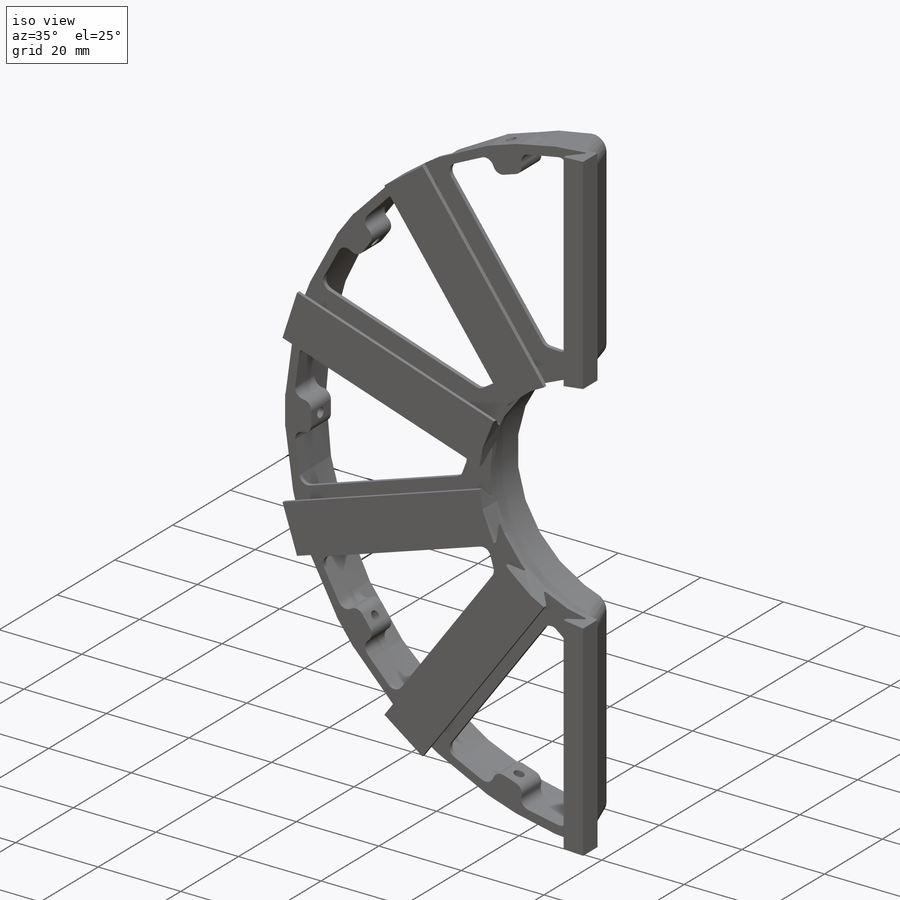
[diagram: iso view]
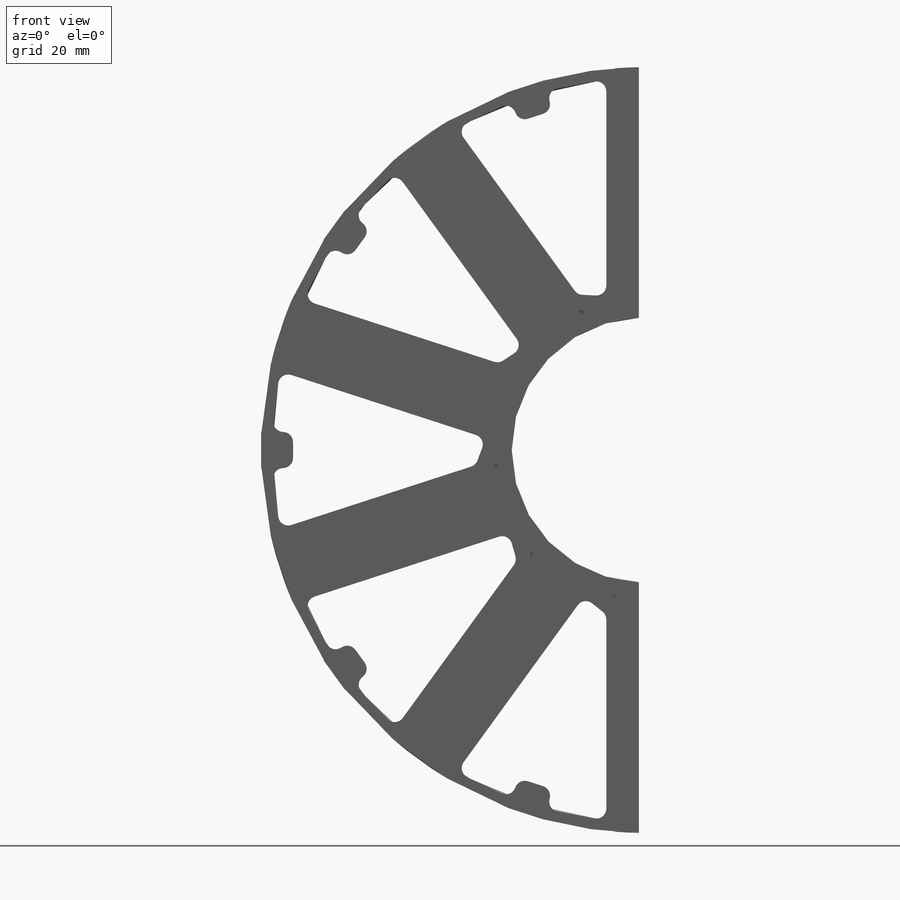
[diagram: front view]
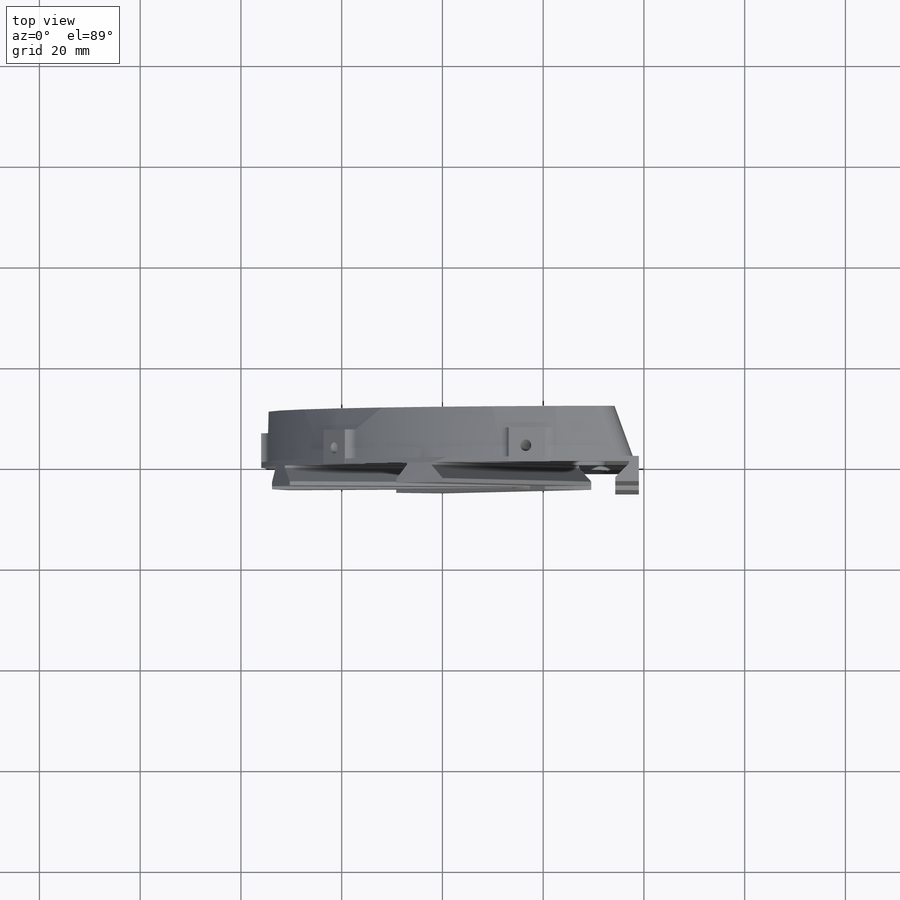
[diagram: top view]
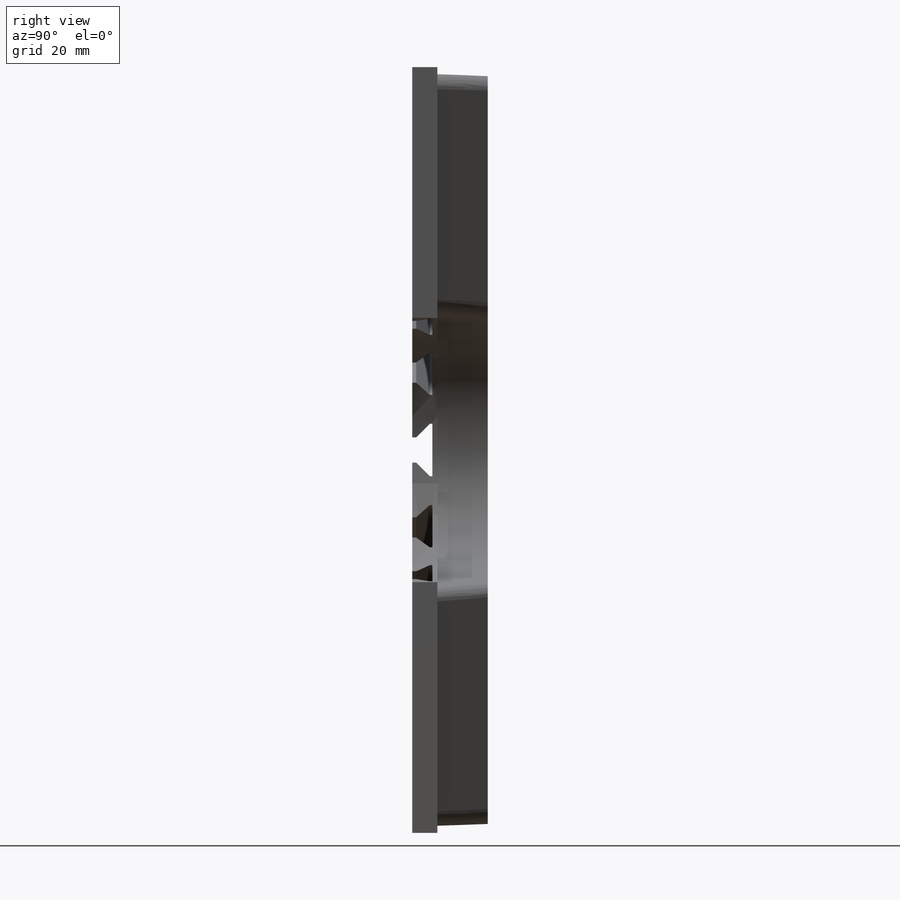
[diagram: right view]
SOLIDWORKS PART (.sldprt)
format: sldprt  version: not decoded by parser v0  size: 878,592 bytes
history: native  units: mm
features: sketch x19, cut_extrude x12, fillet x7, extrude x5, pattern_circular x4, plane x2, material x1, revolve x1, mirror x1 (+18 scaffold rows collapsed)
feature tree (70):
  scaffold x18  (default folders/planes/origin — collapsed)
  material  "6061 Alloy"
  sketch  "Sketch1"  dims[D1=152.0mm D2=52.5mm]
  extrude  "Extrude1"  Depth=1mm
  sketch  "Sketch2"  dims[c1.D1=4.0mm c1.D2=~5.391079mm c2.D2=45.0deg c2.D3=6.32mm c2.D4=0.8mm c2.D1=4.0mm c2.D5=0.5mm c3.D3=2.5mm]
  extrude  "Extrude2"  [1 undecoded]
  sketch  "Sketch3"
  cut_extrude  "Extrude3"  [1 undecoded]
  pattern_circular  "CirPattern3"  Count=6 Angle=180deg
  sketch  "Sketch4"
  cut_extrude  "Cut-Extrude1"  [1 undecoded]
  pattern_circular  "CirPattern4"  Count=5 Angle=144deg
  sketch  "Sketch6"  dims[c1.D1=1.0mm c2.D1=25.0deg c2.D2=1.0mm c2.D3=1.0mm c2.D4=6.5mm c2.D5=10.0mm c2.D6=1.0mm c2.D7=1.0mm c3.D7=25.0deg c3.D6=1.0mm c3.D8=1.0mm c3.D2=1.0mm c3.D3=1.0mm c3.D5=10.0mm c4.D6=1.0mm c4.D1=~3.960071mm c5.D1=~108.223825deg c6.D1=1.0mm c7.D1=0.0deg c7.D3=1.2mm c7.D4=1.2mm]
  revolve  "Revolve1"  Angle=360deg
  sketch  "Sketch7"
  cut_extrude  "Extrude5"  Depth=1mm
  sketch  "Sketch8"  dims[D1=2.2mm D2=22.0mm D3=8.0mm D4=1.0mm]
  extrude  "Extrude6"  [1 undecoded]
  sketch  "Sketch9"
  cut_extrude  "Extrude7"  [1 undecoded]
  sketch  "Sketch10"
  cut_extrude  "Extrude8"  [1 undecoded]
  sketch  "Sketch22"
  extrude  "Extrude19"  [1 undecoded]
  mirror  "Mirror1"
  sketch  "Sketch23"
  cut_extrude  "Extrude20"  [1 undecoded]
  fillet  "Fillet3"  Radius=2mm
  fillet  "Fillet11"  Radius=2mm
  fillet  "Fillet4"  Radius=3mm
  sketch  "Sketch11"  dims[c1.D1=~82.916299mm c2.D1=18.0deg]
  plane  "Plane1"
  sketch  "Sketch12"  dims[c1.D2=2.2606mm c1.D5=4.65mm c1.D6=4.65mm c1.D7=3.175mm c1.D1=12.65mm c1.D3=3.175mm c1.D4=10.675mm c2.D6=8.65mm c2.D8=2.0mm c2.D1=2.0mm c2.D4=2.0mm]
  extrude  "Extrude9"  Depth=6.35mm
  sketch  "Sketch13"
  cut_extrude  "Extrude10"  [1 undecoded]
  plane  "Plane2"
  sketch  "Sketch16"  dims[D1=0.0mm]
  cut_extrude  "Extrude13"  [1 undecoded]
  fillet  "Fillet5"  Radius=2mm
  fillet  "Fillet7"  Radius=2mm
  pattern_circular  "CirPattern8"  Count=5 Angle=144deg
  pattern_circular  "CirPattern9"  Count=2 Angle=144deg
  sketch  "Sketch18"
  cut_extrude  "Extrude15"  [1 undecoded]
  sketch  "Sketch19"
  cut_extrude  "Extrude16"  [1 undecoded]
  sketch  "Sketch20"
  cut_extrude  "Extrude17"  [1 undecoded]
  sketch  "Sketch21"
  cut_extrude  "Extrude18"  [1 undecoded]
  fillet  "Fillet8"  Radius=2mm
  fillet  "Fillet9"  Radius=2mm
decode coverage: 22 of 49 modeling features carry decoded parameters
note: ~ marks probable driven/reference dimensions
note: 14 parameter values undecoded
summary: no parameter record found for 14 features
note: suppression state not decoded; provenance and decode notes live in map.json
